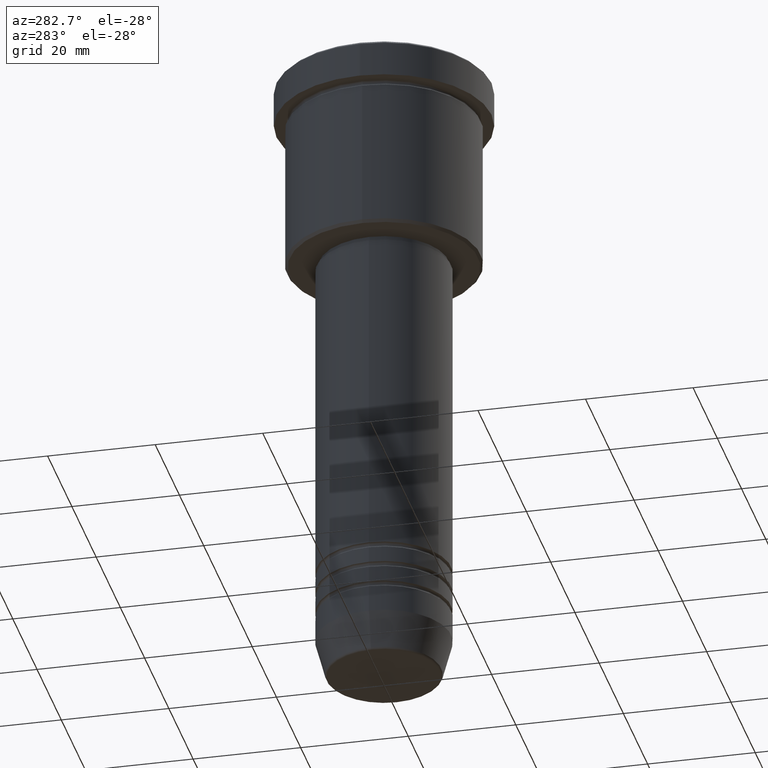
[diagram: clean part render]
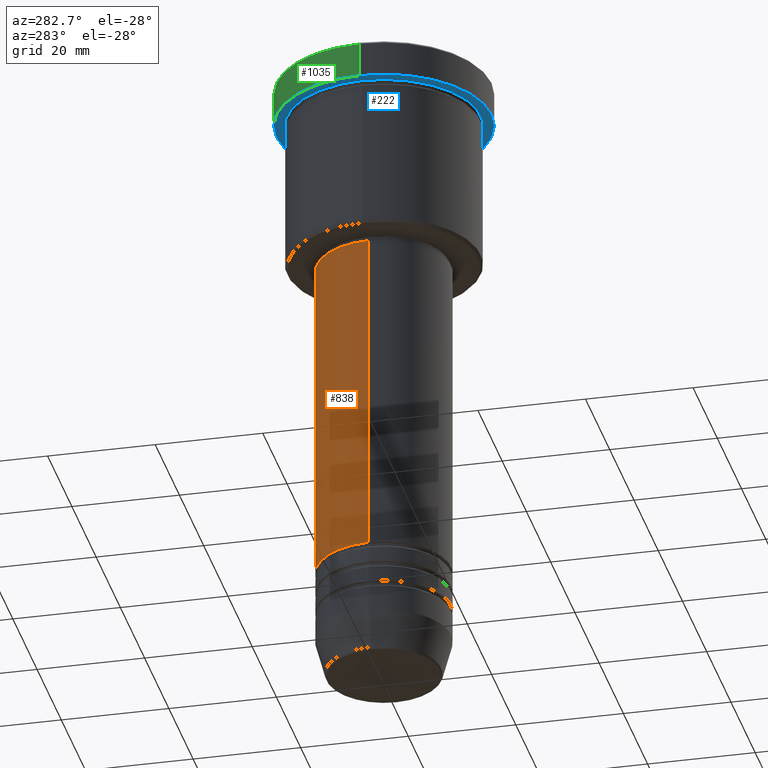
[diagram: same view with three faces highlighted in distinct colors, each labeled with its STEP entity id]
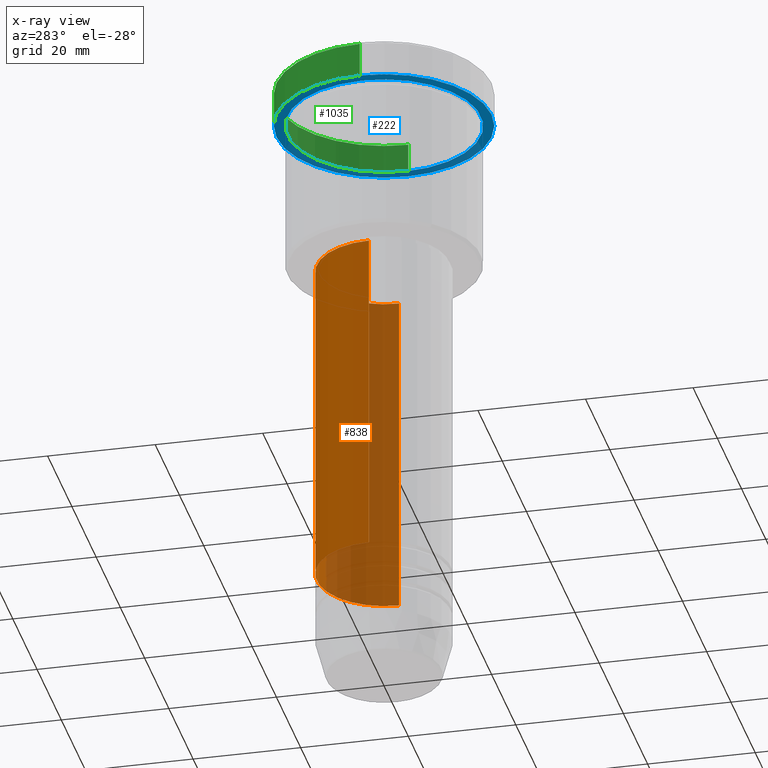
[diagram: x-ray of the same camera — body ghosted, the three highlighted faces saturated]
A machine part, auxiliary view with three faces highlighted in distinct colors.
The next image is the same camera in x-ray (body ghosted, the three faces saturated) — at least one of them is partly hidden behind the body in this view.
Their STEP definitions:

[orange] entity #838 — the highlighted cylindrical surface (partial cylindrical patch) has radius 12.5 mm, axis along (-0, -0, 1).
#77 = VERTEX_POINT ( 'NONE', #627 ) ;
#91 = DIRECTION ( 'NONE',  ( -0.000000000000000000, -0.000000000000000000, 1.000000000000000000 ) ) ;
#121 = ORIENTED_EDGE ( 'NONE', *, *, #524, .T. ) ;
#131 = CARTESIAN_POINT ( 'NONE',  ( 12.50000000000000000, 0.000000000000000000, -98.99999999999997158 ) ) ;
#168 = ORIENTED_EDGE ( 'NONE', *, *, #346, .T. ) ;
#183 = DIRECTION ( 'NONE',  ( -0.000000000000000000, -0.000000000000000000, 1.000000000000000000 ) ) ;
#239 = VECTOR ( 'NONE', #91, 1000.000000000000000 ) ;
#263 = EDGE_LOOP ( 'NONE', ( #168, #121, #617, #734 ) ) ;
#288 = DIRECTION ( 'NONE',  ( -0.000000000000000000, -0.000000000000000000, 1.000000000000000000 ) ) ;
#291 = DIRECTION ( 'NONE',  ( 1.000000000000000000, 0.000000000000000000, 0.000000000000000000 ) ) ;
#344 = EDGE_CURVE ( 'NONE', #385, #612, #1018, .T. ) ;
#346 = EDGE_CURVE ( 'NONE', #874, #77, #982, .T. ) ;
#369 = CARTESIAN_POINT ( 'NONE',  ( -12.50000000000000000, 1.530808498934191521E-15, 0.000000000000000000 ) ) ;
#370 = CARTESIAN_POINT ( 'NONE',  ( 0.000000000000000000, 0.000000000000000000, -98.99999999999997158 ) ) ;
#385 = VERTEX_POINT ( 'NONE', #946 ) ;
#401 = AXIS2_PLACEMENT_3D ( 'NONE', #370, #1108, #1025 ) ;
#524 = EDGE_CURVE ( 'NONE', #77, #612, #648, .T. ) ;
#568 = CYLINDRICAL_SURFACE ( 'NONE', #869, 12.50000000000000000 ) ;
#612 = VERTEX_POINT ( 'NONE', #694 ) ;
#617 = ORIENTED_EDGE ( 'NONE', *, *, #344, .F. ) ;
#627 = CARTESIAN_POINT ( 'NONE',  ( -12.50000000000000000, 1.530808498934191521E-15, -98.99999999999997158 ) ) ;
#638 = CARTESIAN_POINT ( 'NONE',  ( 0.000000000000000000, 0.000000000000000000, -37.00000000000002842 ) ) ;
#643 = DIRECTION ( 'NONE',  ( 1.000000000000000000, 0.000000000000000000, 0.000000000000000000 ) ) ;
#648 = LINE ( 'NONE', #369, #916 ) ;
#665 = FACE_OUTER_BOUND ( 'NONE', #263, .T. ) ;
#694 = CARTESIAN_POINT ( 'NONE',  ( -12.50000000000000000, 1.530808498934191521E-15, -37.00000000000002842 ) ) ;
#734 = ORIENTED_EDGE ( 'NONE', *, *, #918, .F. ) ;
#765 = CARTESIAN_POINT ( 'NONE',  ( 0.000000000000000000, 0.000000000000000000, 0.000000000000000000 ) ) ;
#838 = ADVANCED_FACE ( 'NONE', ( #665 ), #568, .T. ) ;
#858 = LINE ( 'NONE', #1039, #239 ) ;
#869 = AXIS2_PLACEMENT_3D ( 'NONE', #765, #1041, #291 ) ;
#874 = VERTEX_POINT ( 'NONE', #131 ) ;
#916 = VECTOR ( 'NONE', #288, 1000.000000000000000 ) ;
#918 = EDGE_CURVE ( 'NONE', #874, #385, #858, .T. ) ;
#946 = CARTESIAN_POINT ( 'NONE',  ( 12.50000000000000000, 0.000000000000000000, -37.00000000000002842 ) ) ;
#982 = CIRCLE ( 'NONE', #401, 12.50000000000000000 ) ;
#1018 = CIRCLE ( 'NONE', #1059, 12.50000000000000000 ) ;
#1025 = DIRECTION ( 'NONE',  ( 1.000000000000000000, 0.000000000000000000, 0.000000000000000000 ) ) ;
#1039 = CARTESIAN_POINT ( 'NONE',  ( 12.50000000000000000, 0.000000000000000000, 0.000000000000000000 ) ) ;
#1041 = DIRECTION ( 'NONE',  ( -0.000000000000000000, -0.000000000000000000, 1.000000000000000000 ) ) ;
#1059 = AXIS2_PLACEMENT_3D ( 'NONE', #638, #183, #643 ) ;
#1108 = DIRECTION ( 'NONE',  ( -0.000000000000000000, -0.000000000000000000, 1.000000000000000000 ) ) ;

[blue] entity #222 — the highlighted planar face has unit normal (0, 0, -1).
#8 = CIRCLE ( 'NONE', #158, 20.00000000000000000 ) ;
#72 = VERTEX_POINT ( 'NONE', #877 ) ;
#157 = CIRCLE ( 'NONE', #608, 20.00000000000000000 ) ;
#158 = AXIS2_PLACEMENT_3D ( 'NONE', #1151, #956, #1066 ) ;
#181 = PLANE ( 'NONE',  #867 ) ;
#186 = DIRECTION ( 'NONE',  ( 0.000000000000000000, 0.000000000000000000, -1.000000000000000000 ) ) ;
#222 = ADVANCED_FACE ( 'NONE', ( #634, #1007 ), #181, .T. ) ;
#258 = EDGE_CURVE ( 'NONE', #1140, #1086, #841, .T. ) ;
#300 = CARTESIAN_POINT ( 'NONE',  ( 0.000000000000000000, 0.000000000000000000, -6.999999999999995559 ) ) ;
#320 = CARTESIAN_POINT ( 'NONE',  ( 0.000000000000000000, 0.000000000000000000, -6.999999999999995559 ) ) ;
#407 = EDGE_CURVE ( 'NONE', #1086, #1140, #486, .T. ) ;
#413 = CARTESIAN_POINT ( 'NONE',  ( 0.000000000000000000, 0.000000000000000000, -6.999999999999995559 ) ) ;
#453 = AXIS2_PLACEMENT_3D ( 'NONE', #413, #1053, #1138 ) ;
#486 = CIRCLE ( 'NONE', #453, 18.00000000000000000 ) ;
#537 = DIRECTION ( 'NONE',  ( -1.000000000000000000, 0.000000000000000000, -0.000000000000000000 ) ) ;
#548 = CARTESIAN_POINT ( 'NONE',  ( 20.00000000000000000, 0.000000000000000000, -6.999999999999995559 ) ) ;
#559 = DIRECTION ( 'NONE',  ( 1.000000000000000000, 0.000000000000000000, 0.000000000000000000 ) ) ;
#608 = AXIS2_PLACEMENT_3D ( 'NONE', #300, #1034, #559 ) ;
#609 = EDGE_LOOP ( 'NONE', ( #1135, #895 ) ) ;
#634 = FACE_BOUND ( 'NONE', #609, .T. ) ;
#641 = ORIENTED_EDGE ( 'NONE', *, *, #674, .F. ) ;
#645 = AXIS2_PLACEMENT_3D ( 'NONE', #320, #698, #677 ) ;
#672 = VERTEX_POINT ( 'NONE', #548 ) ;
#674 = EDGE_CURVE ( 'NONE', #72, #672, #157, .T. ) ;
#677 = DIRECTION ( 'NONE',  ( -1.000000000000000000, 0.000000000000000000, 0.000000000000000000 ) ) ;
#698 = DIRECTION ( 'NONE',  ( -0.000000000000000000, -0.000000000000000000, 1.000000000000000000 ) ) ;
#784 = CARTESIAN_POINT ( 'NONE',  ( -18.00000000000000000, 0.000000000000000000, -6.999999999999995559 ) ) ;
#808 = CARTESIAN_POINT ( 'NONE',  ( 18.00000000000000000, 2.204364238465235428E-15, -6.999999999999995559 ) ) ;
#841 = CIRCLE ( 'NONE', #645, 18.00000000000000000 ) ;
#867 = AXIS2_PLACEMENT_3D ( 'NONE', #1012, #186, #537 ) ;
#877 = CARTESIAN_POINT ( 'NONE',  ( -20.00000000000000000, 2.449293598294706513E-15, -6.999999999999995559 ) ) ;
#895 = ORIENTED_EDGE ( 'NONE', *, *, #407, .T. ) ;
#956 = DIRECTION ( 'NONE',  ( -0.000000000000000000, -0.000000000000000000, 1.000000000000000000 ) ) ;
#972 = EDGE_LOOP ( 'NONE', ( #1036, #641 ) ) ;
#1007 = FACE_OUTER_BOUND ( 'NONE', #972, .T. ) ;
#1012 = CARTESIAN_POINT ( 'NONE',  ( 0.000000000000000000, 20.00000000000000000, -6.999999999999995559 ) ) ;
#1034 = DIRECTION ( 'NONE',  ( -0.000000000000000000, -0.000000000000000000, 1.000000000000000000 ) ) ;
#1036 = ORIENTED_EDGE ( 'NONE', *, *, #1054, .F. ) ;
#1053 = DIRECTION ( 'NONE',  ( -0.000000000000000000, -0.000000000000000000, 1.000000000000000000 ) ) ;
#1054 = EDGE_CURVE ( 'NONE', #672, #72, #8, .T. ) ;
#1066 = DIRECTION ( 'NONE',  ( 1.000000000000000000, 0.000000000000000000, 0.000000000000000000 ) ) ;
#1086 = VERTEX_POINT ( 'NONE', #808 ) ;
#1135 = ORIENTED_EDGE ( 'NONE', *, *, #258, .T. ) ;
#1138 = DIRECTION ( 'NONE',  ( -1.000000000000000000, 0.000000000000000000, 0.000000000000000000 ) ) ;
#1140 = VERTEX_POINT ( 'NONE', #784 ) ;
#1151 = CARTESIAN_POINT ( 'NONE',  ( 0.000000000000000000, 0.000000000000000000, -6.999999999999995559 ) ) ;

[green] entity #1035 — the highlighted cylindrical surface (partial cylindrical patch) has radius 20 mm, axis along (-0, -0, 1).
#8 = CIRCLE ( 'NONE', #158, 20.00000000000000000 ) ;
#47 = DIRECTION ( 'NONE',  ( -0.000000000000000000, -0.000000000000000000, 1.000000000000000000 ) ) ;
#72 = VERTEX_POINT ( 'NONE', #877 ) ;
#76 = CIRCLE ( 'NONE', #915, 20.00000000000000000 ) ;
#118 = VECTOR ( 'NONE', #495, 1000.000000000000000 ) ;
#158 = AXIS2_PLACEMENT_3D ( 'NONE', #1151, #956, #1066 ) ;
#195 = AXIS2_PLACEMENT_3D ( 'NONE', #497, #778, #592 ) ;
#197 = EDGE_CURVE ( 'NONE', #397, #1152, #76, .T. ) ;
#210 = CARTESIAN_POINT ( 'NONE',  ( -20.00000000000000000, 2.449293598294706513E-15, -0.5000000000000108802 ) ) ;
#251 = LINE ( 'NONE', #792, #118 ) ;
#292 = EDGE_LOOP ( 'NONE', ( #1030, #376, #339, #1155 ) ) ;
#304 = EDGE_CURVE ( 'NONE', #72, #397, #875, .T. ) ;
#339 = ORIENTED_EDGE ( 'NONE', *, *, #197, .T. ) ;
#376 = ORIENTED_EDGE ( 'NONE', *, *, #304, .T. ) ;
#397 = VERTEX_POINT ( 'NONE', #210 ) ;
#488 = CARTESIAN_POINT ( 'NONE',  ( -20.00000000000000000, 2.449293598294706513E-15, 0.000000000000000000 ) ) ;
#495 = DIRECTION ( 'NONE',  ( -0.000000000000000000, -0.000000000000000000, 1.000000000000000000 ) ) ;
#497 = CARTESIAN_POINT ( 'NONE',  ( 0.000000000000000000, 0.000000000000000000, 0.000000000000000000 ) ) ;
#519 = VECTOR ( 'NONE', #47, 1000.000000000000000 ) ;
#548 = CARTESIAN_POINT ( 'NONE',  ( 20.00000000000000000, 0.000000000000000000, -6.999999999999995559 ) ) ;
#575 = CYLINDRICAL_SURFACE ( 'NONE', #195, 20.00000000000000000 ) ;
#592 = DIRECTION ( 'NONE',  ( 1.000000000000000000, 0.000000000000000000, 0.000000000000000000 ) ) ;
#672 = VERTEX_POINT ( 'NONE', #548 ) ;
#700 = FACE_OUTER_BOUND ( 'NONE', #292, .T. ) ;
#712 = CARTESIAN_POINT ( 'NONE',  ( 0.000000000000000000, 0.000000000000000000, -0.5000000000000108802 ) ) ;
#716 = DIRECTION ( 'NONE',  ( 0.000000000000000000, 0.000000000000000000, -1.000000000000000000 ) ) ;
#749 = EDGE_CURVE ( 'NONE', #672, #1152, #251, .T. ) ;
#778 = DIRECTION ( 'NONE',  ( -0.000000000000000000, -0.000000000000000000, 1.000000000000000000 ) ) ;
#792 = CARTESIAN_POINT ( 'NONE',  ( 20.00000000000000000, 0.000000000000000000, 0.000000000000000000 ) ) ;
#875 = LINE ( 'NONE', #488, #519 ) ;
#877 = CARTESIAN_POINT ( 'NONE',  ( -20.00000000000000000, 2.449293598294706513E-15, -6.999999999999995559 ) ) ;
#909 = CARTESIAN_POINT ( 'NONE',  ( 20.00000000000000000, 0.000000000000000000, -0.5000000000000108802 ) ) ;
#915 = AXIS2_PLACEMENT_3D ( 'NONE', #712, #716, #1101 ) ;
#956 = DIRECTION ( 'NONE',  ( -0.000000000000000000, -0.000000000000000000, 1.000000000000000000 ) ) ;
#1030 = ORIENTED_EDGE ( 'NONE', *, *, #1054, .T. ) ;
#1035 = ADVANCED_FACE ( 'NONE', ( #700 ), #575, .T. ) ;
#1054 = EDGE_CURVE ( 'NONE', #672, #72, #8, .T. ) ;
#1066 = DIRECTION ( 'NONE',  ( 1.000000000000000000, 0.000000000000000000, 0.000000000000000000 ) ) ;
#1101 = DIRECTION ( 'NONE',  ( 1.000000000000000000, 0.000000000000000000, 0.000000000000000000 ) ) ;
#1151 = CARTESIAN_POINT ( 'NONE',  ( 0.000000000000000000, 0.000000000000000000, -6.999999999999995559 ) ) ;
#1152 = VERTEX_POINT ( 'NONE', #909 ) ;
#1155 = ORIENTED_EDGE ( 'NONE', *, *, #749, .F. ) ;